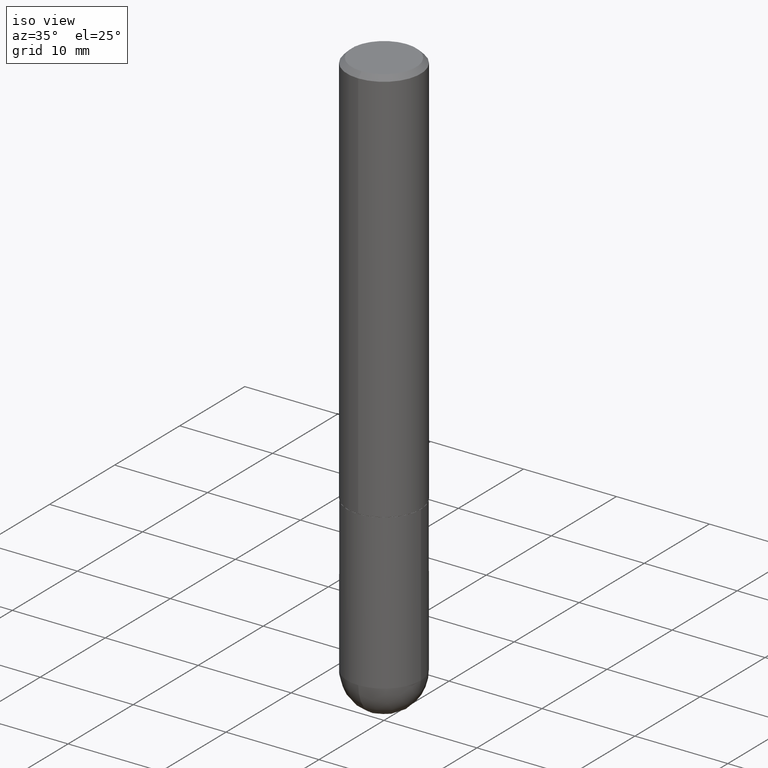
[diagram: clean part render]
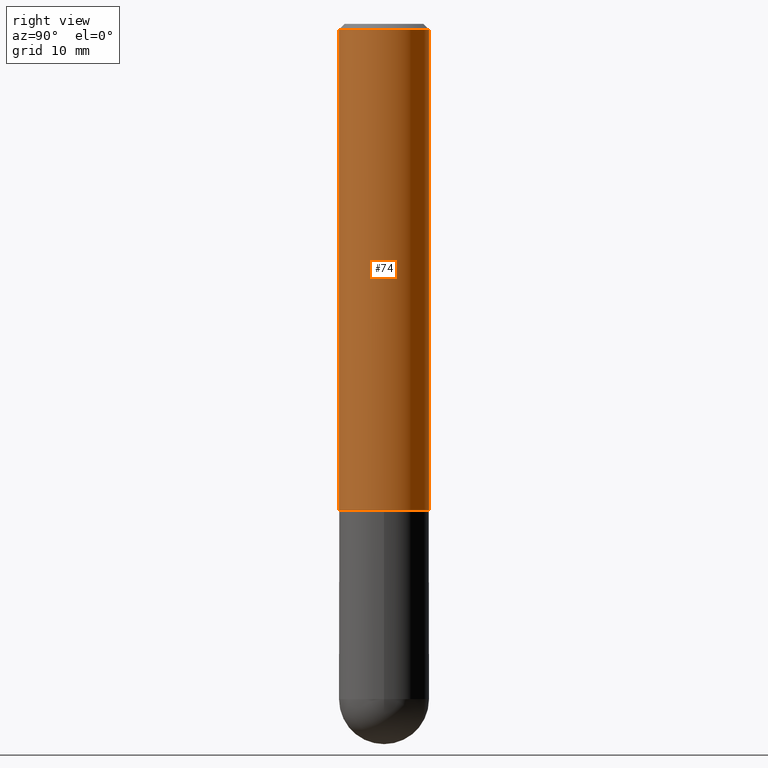
[diagram: tour spotlight — one face highlighted and labeled with its STEP entity id]
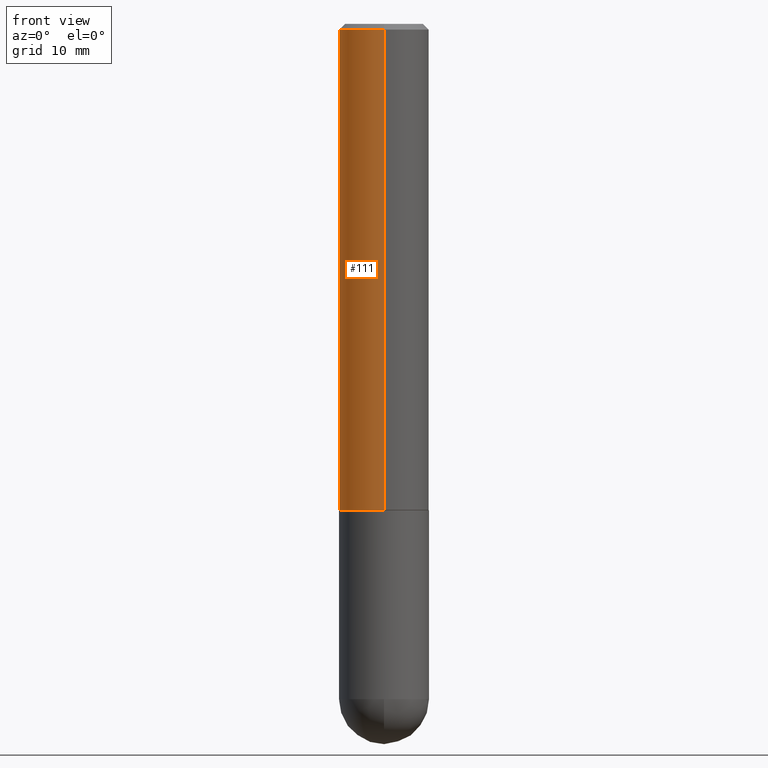
[diagram: tour spotlight — one face highlighted and labeled with its STEP entity id]
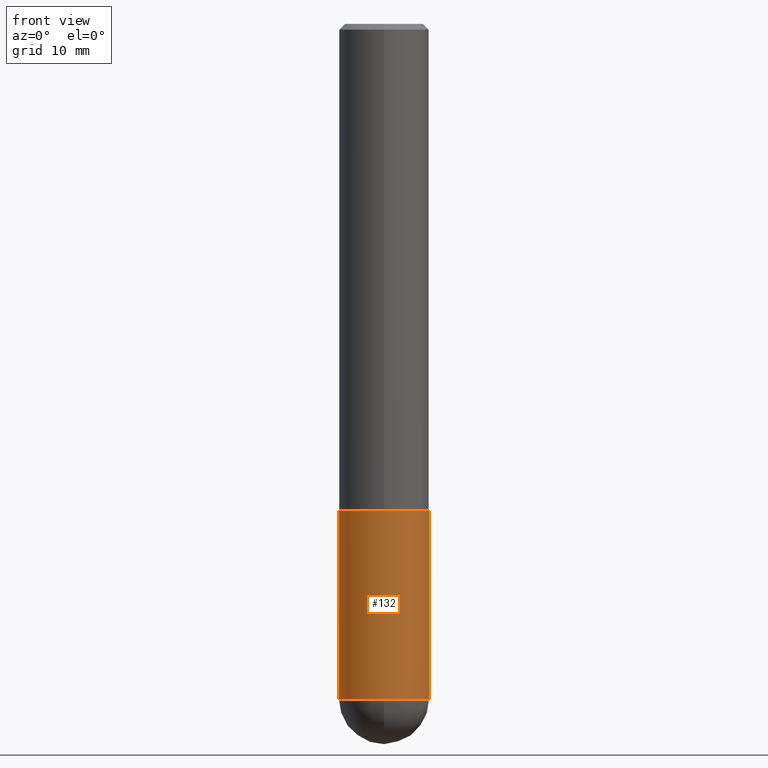
[diagram: tour spotlight — one face highlighted and labeled with its STEP entity id]
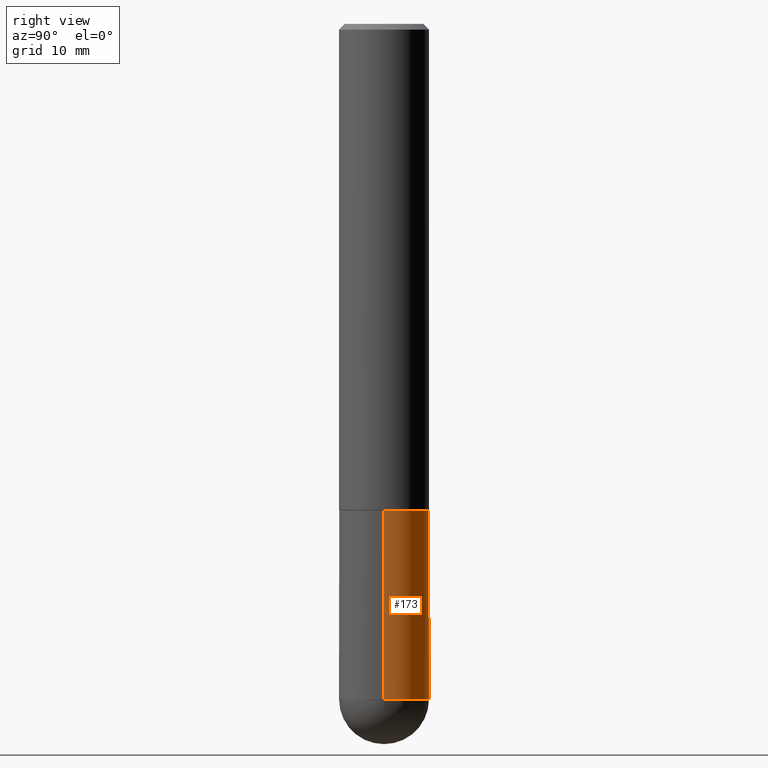
[diagram: tour spotlight — one face highlighted and labeled with its STEP entity id]
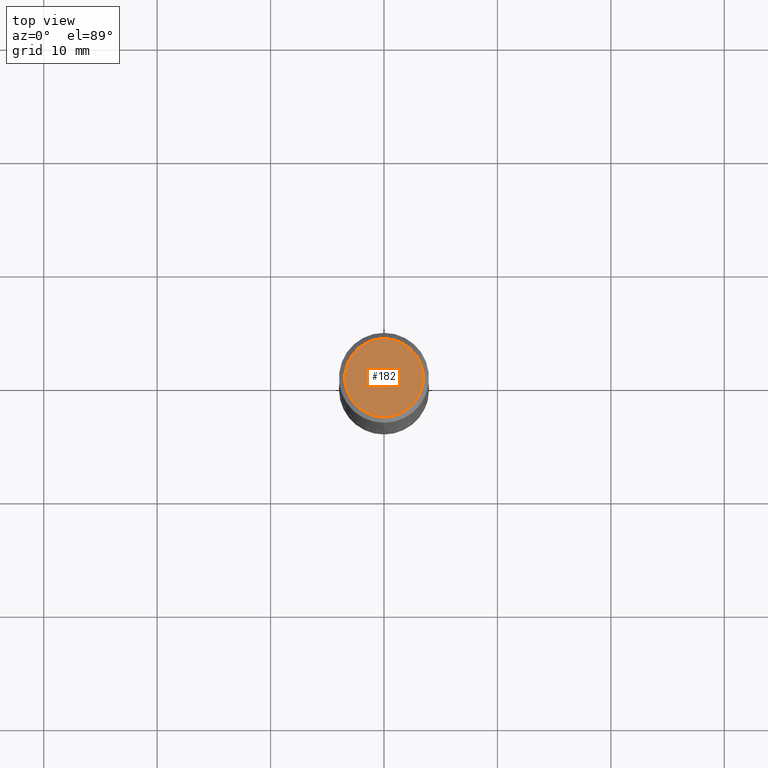
[diagram: tour spotlight — one face highlighted and labeled with its STEP entity id]
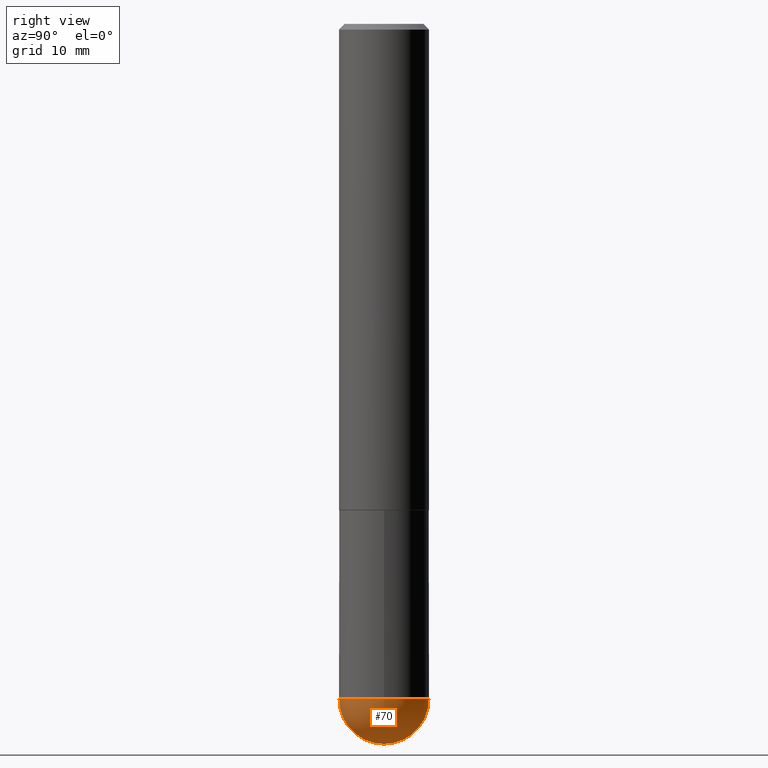
[diagram: tour spotlight — one face highlighted and labeled with its STEP entity id]
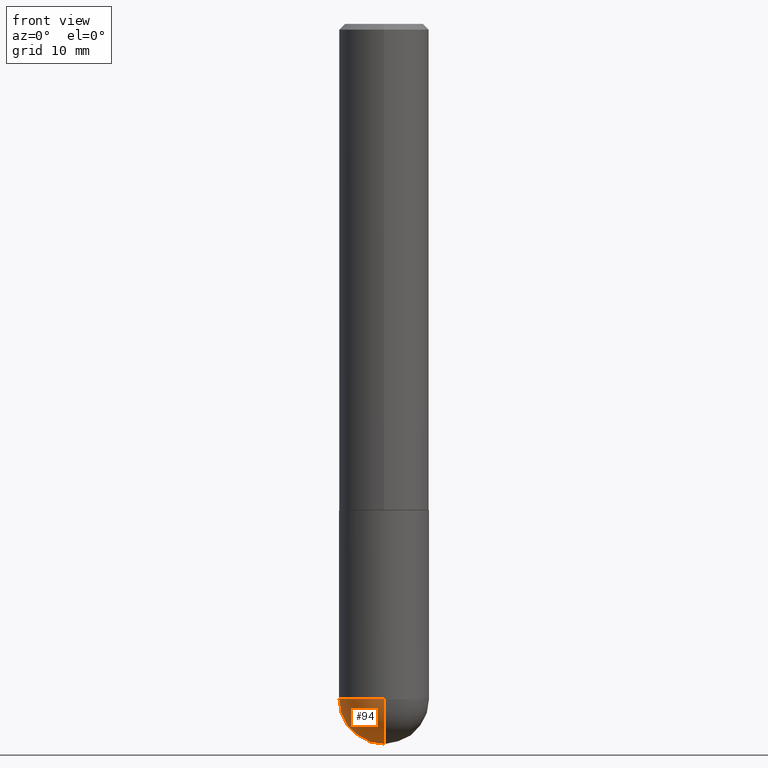
[diagram: tour spotlight — one face highlighted and labeled with its STEP entity id]
A machine part: a face-by-face anatomy tour. The part has 13 B-rep faces; the first image is the clean iso view, then the 7 largest visible faces are spotlighted one at a time (largest first), each with its STEP entity span.

Face 1 — right view, entity #74. In plain terms, the highlighted cylindrical surface (partial cylindrical patch) has radius 3.9688 mm, axis along (-0, 0, 1).
Definition (entity closure, byte-faithful):
#30 = DIRECTION ( 'NONE',  ( -2.446082020685560042E-29, 3.490603180776537498E-15, 1.000000000000000000 ) ) ;
#33 = CIRCLE ( 'NONE', #108, 0.1562500000000002220 ) ;
#41 = EDGE_LOOP ( 'NONE', ( #332, #65, #196, #207 ) ) ;
#43 = DIRECTION ( 'NONE',  ( -6.982962677686265922E-15, -1.000000000000000000, 3.490603180776537104E-15 ) ) ;
#61 = VERTEX_POINT ( 'NONE', #304 ) ;
#65 = ORIENTED_EDGE ( 'NONE', *, *, #258, .T. ) ;
#69 = CARTESIAN_POINT ( 'NONE',  ( 1.110223024625157132E-15, 0.1562500000000001110, -5.454067469963343169E-16 ) ) ;
#74 = ADVANCED_FACE ( 'NONE', ( #213 ), #340, .T. ) ;
#75 = VECTOR ( 'NONE', #115, 39.37007874015748143 ) ;
#76 = DIRECTION ( 'NONE',  ( -2.446082020685560042E-29, 3.490603180776537498E-15, 1.000000000000000000 ) ) ;
#81 = VECTOR ( 'NONE', #30, 39.37007874015748143 ) ;
#108 = AXIS2_PLACEMENT_3D ( 'NONE', #128, #131, #380 ) ;
#115 = DIRECTION ( 'NONE',  ( -2.446082020685560042E-29, 3.490603180776537498E-15, 1.000000000000000000 ) ) ;
#116 = VERTEX_POINT ( 'NONE', #211 ) ;
#128 = CARTESIAN_POINT ( 'NONE',  ( 4.126540368896540526E-29, -5.888647565970019255E-15, -1.687000000000000055 ) ) ;
#131 = DIRECTION ( 'NONE',  ( -2.446082020685560042E-29, 3.490603180776537498E-15, 1.000000000000000000 ) ) ;
#152 = EDGE_CURVE ( 'NONE', #410, #116, #402, .T. ) ;
#156 = AXIS2_PLACEMENT_3D ( 'NONE', #371, #76, #43 ) ;
#192 = CARTESIAN_POINT ( 'NONE',  ( -1.091087918388439336E-15, -0.1562500000000060785, -1.686999999999999611 ) ) ;
#196 = ORIENTED_EDGE ( 'NONE', *, *, #355, .F. ) ;
#203 = VERTEX_POINT ( 'NONE', #206 ) ;
#206 = CARTESIAN_POINT ( 'NONE',  ( 1.091087918388479568E-15, 0.1562499999999999445, -0.02000000000000057981 ) ) ;
#207 = ORIENTED_EDGE ( 'NONE', *, *, #152, .F. ) ;
#211 = CARTESIAN_POINT ( 'NONE',  ( -1.071952812151801215E-15, -0.1562500000000000833, -0.01999999999999948694 ) ) ;
#213 = FACE_OUTER_BOUND ( 'NONE', #41, .T. ) ;
#224 = DIRECTION ( 'NONE',  ( -2.446082020685560042E-29, 3.490603180776537498E-15, 1.000000000000000000 ) ) ;
#235 = CIRCLE ( 'NONE', #254, 0.1562500000000000000 ) ;
#252 = DIRECTION ( 'NONE',  ( -6.982962677686265133E-15, -1.000000000000000000, 3.496765431890256920E-15 ) ) ;
#254 = AXIS2_PLACEMENT_3D ( 'NONE', #376, #224, #252 ) ;
#258 = EDGE_CURVE ( 'NONE', #61, #203, #352, .T. ) ;
#304 = CARTESIAN_POINT ( 'NONE',  ( 1.110223024625178431E-15, 0.1562499999999943379, -1.687000000000000499 ) ) ;
#332 = ORIENTED_EDGE ( 'NONE', *, *, #350, .T. ) ;
#340 = CYLINDRICAL_SURFACE ( 'NONE', #156, 0.1562500000000001110 ) ;
#350 = EDGE_CURVE ( 'NONE', #410, #61, #33, .T. ) ;
#352 = LINE ( 'NONE', #69, #81 ) ;
#355 = EDGE_CURVE ( 'NONE', #116, #203, #235, .T. ) ;
#371 = CARTESIAN_POINT ( 'NONE',  ( 0.000000000000000000, 0.000000000000000000, 0.000000000000000000 ) ) ;
#376 = CARTESIAN_POINT ( 'NONE',  ( 4.892164041371128702E-31, -6.981206361553086139E-17, -0.02000000000000003511 ) ) ;
#380 = DIRECTION ( 'NONE',  ( -6.982962677686265922E-15, -1.000000000000000000, 3.496765431890251792E-15 ) ) ;
#397 = CARTESIAN_POINT ( 'NONE',  ( -1.091087918388479765E-15, -0.1562500000000001110, 5.454067469963343169E-16 ) ) ;
#402 = LINE ( 'NONE', #397, #75 ) ;
#410 = VERTEX_POINT ( 'NONE', #192 ) ;

Face 2 — front view, entity #111. In plain terms, the highlighted cylindrical surface (partial cylindrical patch) has radius 3.9688 mm, axis along (-0, 0, 1).
Definition (entity closure, byte-faithful):
#1 = EDGE_CURVE ( 'NONE', #203, #116, #267, .T. ) ;
#17 = ORIENTED_EDGE ( 'NONE', *, *, #152, .T. ) ;
#20 = DIRECTION ( 'NONE',  ( -6.982962677686265922E-15, -1.000000000000000000, 3.490603180776537104E-15 ) ) ;
#30 = DIRECTION ( 'NONE',  ( -2.446082020685560042E-29, 3.490603180776537498E-15, 1.000000000000000000 ) ) ;
#55 = CARTESIAN_POINT ( 'NONE',  ( 4.126540368896540526E-29, -5.888647565970019255E-15, -1.687000000000000055 ) ) ;
#56 = EDGE_LOOP ( 'NONE', ( #346, #82, #17, #238 ) ) ;
#60 = DIRECTION ( 'NONE',  ( -2.446082020685560042E-29, 3.490603180776537498E-15, 1.000000000000000000 ) ) ;
#61 = VERTEX_POINT ( 'NONE', #304 ) ;
#64 = DIRECTION ( 'NONE',  ( -2.446082020685560042E-29, 3.490603180776537498E-15, 1.000000000000000000 ) ) ;
#69 = CARTESIAN_POINT ( 'NONE',  ( 1.110223024625157132E-15, 0.1562500000000001110, -5.454067469963343169E-16 ) ) ;
#75 = VECTOR ( 'NONE', #115, 39.37007874015748143 ) ;
#81 = VECTOR ( 'NONE', #30, 39.37007874015748143 ) ;
#82 = ORIENTED_EDGE ( 'NONE', *, *, #406, .T. ) ;
#105 = CIRCLE ( 'NONE', #282, 0.1562500000000002220 ) ;
#111 = ADVANCED_FACE ( 'NONE', ( #148 ), #239, .T. ) ;
#113 = AXIS2_PLACEMENT_3D ( 'NONE', #394, #144, #202 ) ;
#115 = DIRECTION ( 'NONE',  ( -2.446082020685560042E-29, 3.490603180776537498E-15, 1.000000000000000000 ) ) ;
#116 = VERTEX_POINT ( 'NONE', #211 ) ;
#144 = DIRECTION ( 'NONE',  ( -2.446082020685560042E-29, 3.490603180776537498E-15, 1.000000000000000000 ) ) ;
#148 = FACE_OUTER_BOUND ( 'NONE', #56, .T. ) ;
#152 = EDGE_CURVE ( 'NONE', #410, #116, #402, .T. ) ;
#183 = DIRECTION ( 'NONE',  ( -6.982962677686265922E-15, -1.000000000000000000, 3.496765431890251792E-15 ) ) ;
#192 = CARTESIAN_POINT ( 'NONE',  ( -1.091087918388439336E-15, -0.1562500000000060785, -1.686999999999999611 ) ) ;
#202 = DIRECTION ( 'NONE',  ( -6.982962677686265133E-15, -1.000000000000000000, 3.496765431890256920E-15 ) ) ;
#203 = VERTEX_POINT ( 'NONE', #206 ) ;
#206 = CARTESIAN_POINT ( 'NONE',  ( 1.091087918388479568E-15, 0.1562499999999999445, -0.02000000000000057981 ) ) ;
#211 = CARTESIAN_POINT ( 'NONE',  ( -1.071952812151801215E-15, -0.1562500000000000833, -0.01999999999999948694 ) ) ;
#238 = ORIENTED_EDGE ( 'NONE', *, *, #1, .F. ) ;
#239 = CYLINDRICAL_SURFACE ( 'NONE', #398, 0.1562500000000001110 ) ;
#258 = EDGE_CURVE ( 'NONE', #61, #203, #352, .T. ) ;
#267 = CIRCLE ( 'NONE', #113, 0.1562500000000000000 ) ;
#273 = CARTESIAN_POINT ( 'NONE',  ( 0.000000000000000000, 0.000000000000000000, 0.000000000000000000 ) ) ;
#282 = AXIS2_PLACEMENT_3D ( 'NONE', #55, #64, #183 ) ;
#304 = CARTESIAN_POINT ( 'NONE',  ( 1.110223024625178431E-15, 0.1562499999999943379, -1.687000000000000499 ) ) ;
#346 = ORIENTED_EDGE ( 'NONE', *, *, #258, .F. ) ;
#352 = LINE ( 'NONE', #69, #81 ) ;
#394 = CARTESIAN_POINT ( 'NONE',  ( 4.892164041371128702E-31, -6.981206361553086139E-17, -0.02000000000000003511 ) ) ;
#397 = CARTESIAN_POINT ( 'NONE',  ( -1.091087918388479765E-15, -0.1562500000000001110, 5.454067469963343169E-16 ) ) ;
#398 = AXIS2_PLACEMENT_3D ( 'NONE', #273, #60, #20 ) ;
#402 = LINE ( 'NONE', #397, #75 ) ;
#406 = EDGE_CURVE ( 'NONE', #61, #410, #105, .T. ) ;
#410 = VERTEX_POINT ( 'NONE', #192 ) ;

Face 3 — front view, entity #132. In plain terms, the highlighted cylindrical surface (partial cylindrical patch) has radius 3.9688 mm, axis along (-0, 0, 1).
Definition (entity closure, byte-faithful):
#21 = ORIENTED_EDGE ( 'NONE', *, *, #79, .F. ) ;
#24 = LINE ( 'NONE', #208, #281 ) ;
#27 = VERTEX_POINT ( 'NONE', #78 ) ;
#32 = VERTEX_POINT ( 'NONE', #114 ) ;
#38 = CARTESIAN_POINT ( 'NONE',  ( -0.1562500000000000000, 1.110223024625156540E-15, -7.685836078523291160E-30 ) ) ;
#42 = EDGE_CURVE ( 'NONE', #210, #27, #353, .T. ) ;
#44 = DIRECTION ( 'NONE',  ( -2.445468806185136597E-29, 3.491481338843145583E-15, 1.000000000000000000 ) ) ;
#46 = AXIS2_PLACEMENT_3D ( 'NONE', #102, #193, #287 ) ;
#51 = CARTESIAN_POINT ( 'NONE',  ( -0.1562500000000000000, -5.928166919315269532E-15, -1.688000000000000167 ) ) ;
#53 = CIRCLE ( 'NONE', #46, 0.1562500000000000000 ) ;
#59 = EDGE_LOOP ( 'NONE', ( #178, #218, #313, #323, #21 ) ) ;
#78 = CARTESIAN_POINT ( 'NONE',  ( 0.1562500000000000000, -8.129477862328905246E-15, -2.343750000000000000 ) ) ;
#79 = EDGE_CURVE ( 'NONE', #160, #403, #137, .T. ) ;
#90 = AXIS2_PLACEMENT_3D ( 'NONE', #373, #117, #299 ) ;
#100 = CARTESIAN_POINT ( 'NONE',  ( 4.127951344840510809E-29, -5.893620499967230340E-15, -1.688000000000000167 ) ) ;
#102 = CARTESIAN_POINT ( 'NONE',  ( 5.731567514496413899E-29, -8.183159387913622595E-15, -2.343750000000000000 ) ) ;
#114 = CARTESIAN_POINT ( 'NONE',  ( -0.1562500000000000000, -5.928166919315270321E-15, -2.343750000000000000 ) ) ;
#117 = DIRECTION ( 'NONE',  ( -2.445468806185136597E-29, 3.491481338843145583E-15, 1.000000000000000000 ) ) ;
#118 = VECTOR ( 'NONE', #378, 39.37007874015748143 ) ;
#120 = FACE_OUTER_BOUND ( 'NONE', #59, .T. ) ;
#132 = ADVANCED_FACE ( 'NONE', ( #120 ), #268, .T. ) ;
#137 = CIRCLE ( 'NONE', #321, 0.1562500000000000000 ) ;
#142 = CARTESIAN_POINT ( 'NONE',  ( 5.731567514496413899E-29, -8.183159387913622595E-15, -2.343750000000000000 ) ) ;
#160 = VERTEX_POINT ( 'NONE', #51 ) ;
#178 = ORIENTED_EDGE ( 'NONE', *, *, #385, .F. ) ;
#193 = DIRECTION ( 'NONE',  ( -2.445468806185136597E-29, 3.491481338843145583E-15, 1.000000000000000000 ) ) ;
#199 = EDGE_CURVE ( 'NONE', #27, #403, #24, .T. ) ;
#208 = CARTESIAN_POINT ( 'NONE',  ( 0.1562500000000000000, -1.091087918388479174E-15, 7.619026212181150377E-30 ) ) ;
#210 = VERTEX_POINT ( 'NONE', #408 ) ;
#218 = ORIENTED_EDGE ( 'NONE', *, *, #364, .T. ) ;
#263 = DIRECTION ( 'NONE',  ( -2.445468806185136597E-29, 3.491481338843145583E-15, 1.000000000000000000 ) ) ;
#264 = CARTESIAN_POINT ( 'NONE',  ( 0.1562500000000000000, -6.984708418355709513E-15, -1.688000000000000167 ) ) ;
#268 = CYLINDRICAL_SURFACE ( 'NONE', #90, 0.1562500000000000000 ) ;
#281 = VECTOR ( 'NONE', #365, 39.37007874015748143 ) ;
#287 = DIRECTION ( 'NONE',  ( 1.000000000000000000, -6.982962677686262766E-15, 0.000000000000000000 ) ) ;
#295 = DIRECTION ( 'NONE',  ( 1.000000000000000000, -6.982962677686269077E-15, 0.000000000000000000 ) ) ;
#299 = DIRECTION ( 'NONE',  ( 1.000000000000000000, -6.982962677686266711E-15, 4.876176775795936353E-29 ) ) ;
#313 = ORIENTED_EDGE ( 'NONE', *, *, #42, .T. ) ;
#314 = LINE ( 'NONE', #38, #118 ) ;
#321 = AXIS2_PLACEMENT_3D ( 'NONE', #100, #44, #295 ) ;
#323 = ORIENTED_EDGE ( 'NONE', *, *, #199, .T. ) ;
#353 = CIRCLE ( 'NONE', #391, 0.1562500000000000000 ) ;
#364 = EDGE_CURVE ( 'NONE', #32, #210, #53, .T. ) ;
#365 = DIRECTION ( 'NONE',  ( -2.445468806185136877E-29, 3.491481338843145188E-15, 1.000000000000000000 ) ) ;
#373 = CARTESIAN_POINT ( 'NONE',  ( 0.000000000000000000, 0.000000000000000000, 0.000000000000000000 ) ) ;
#378 = DIRECTION ( 'NONE',  ( -2.445468806185136877E-29, 3.491481338843145188E-15, 1.000000000000000000 ) ) ;
#385 = EDGE_CURVE ( 'NONE', #32, #160, #314, .T. ) ;
#391 = AXIS2_PLACEMENT_3D ( 'NONE', #142, #263, #396 ) ;
#396 = DIRECTION ( 'NONE',  ( 1.000000000000000000, -6.982962677686262766E-15, 0.000000000000000000 ) ) ;
#403 = VERTEX_POINT ( 'NONE', #264 ) ;
#408 = CARTESIAN_POINT ( 'NONE',  ( -1.110223024625101517E-15, -0.1562500000000085487, -2.343749999999999556 ) ) ;

Face 4 — right view, entity #173. In plain terms, the highlighted cylindrical surface (partial cylindrical patch) has radius 3.9688 mm, axis along (-0, 0, 1).
Definition (entity closure, byte-faithful):
#2 = DIRECTION ( 'NONE',  ( -2.445468806185136597E-29, 3.491481338843145583E-15, 1.000000000000000000 ) ) ;
#6 = DIRECTION ( 'NONE',  ( -2.445468806185136597E-29, 3.491481338843145583E-15, 1.000000000000000000 ) ) ;
#8 = CIRCLE ( 'NONE', #25, 0.1562500000000000000 ) ;
#9 = CIRCLE ( 'NONE', #289, 0.1562500000000000000 ) ;
#16 = AXIS2_PLACEMENT_3D ( 'NONE', #124, #85, #236 ) ;
#24 = LINE ( 'NONE', #208, #281 ) ;
#25 = AXIS2_PLACEMENT_3D ( 'NONE', #101, #6, #225 ) ;
#27 = VERTEX_POINT ( 'NONE', #78 ) ;
#32 = VERTEX_POINT ( 'NONE', #114 ) ;
#38 = CARTESIAN_POINT ( 'NONE',  ( -0.1562500000000000000, 1.110223024625156540E-15, -7.685836078523291160E-30 ) ) ;
#51 = CARTESIAN_POINT ( 'NONE',  ( -0.1562500000000000000, -5.928166919315269532E-15, -1.688000000000000167 ) ) ;
#78 = CARTESIAN_POINT ( 'NONE',  ( 0.1562500000000000000, -8.129477862328905246E-15, -2.343750000000000000 ) ) ;
#83 = CYLINDRICAL_SURFACE ( 'NONE', #230, 0.1562500000000000000 ) ;
#85 = DIRECTION ( 'NONE',  ( -2.445468806185136597E-29, 3.491481338843145583E-15, 1.000000000000000000 ) ) ;
#87 = EDGE_CURVE ( 'NONE', #403, #160, #9, .T. ) ;
#91 = ORIENTED_EDGE ( 'NONE', *, *, #385, .T. ) ;
#95 = ORIENTED_EDGE ( 'NONE', *, *, #199, .F. ) ;
#101 = CARTESIAN_POINT ( 'NONE',  ( 5.731567514496413899E-29, -8.183159387913622595E-15, -2.343750000000000000 ) ) ;
#114 = CARTESIAN_POINT ( 'NONE',  ( -0.1562500000000000000, -5.928166919315270321E-15, -2.343750000000000000 ) ) ;
#118 = VECTOR ( 'NONE', #378, 39.37007874015748143 ) ;
#124 = CARTESIAN_POINT ( 'NONE',  ( 5.731567514496413899E-29, -8.183159387913622595E-15, -2.343750000000000000 ) ) ;
#160 = VERTEX_POINT ( 'NONE', #51 ) ;
#173 = ADVANCED_FACE ( 'NONE', ( #181 ), #83, .T. ) ;
#180 = ORIENTED_EDGE ( 'NONE', *, *, #87, .F. ) ;
#181 = FACE_OUTER_BOUND ( 'NONE', #240, .T. ) ;
#190 = CIRCLE ( 'NONE', #16, 0.1562500000000000000 ) ;
#199 = EDGE_CURVE ( 'NONE', #27, #403, #24, .T. ) ;
#204 = CARTESIAN_POINT ( 'NONE',  ( 0.000000000000000000, 0.000000000000000000, 0.000000000000000000 ) ) ;
#208 = CARTESIAN_POINT ( 'NONE',  ( 0.1562500000000000000, -1.091087918388479174E-15, 7.619026212181150377E-30 ) ) ;
#215 = DIRECTION ( 'NONE',  ( 1.000000000000000000, -6.982962677686266711E-15, 4.876176775795936353E-29 ) ) ;
#216 = EDGE_CURVE ( 'NONE', #381, #32, #190, .T. ) ;
#225 = DIRECTION ( 'NONE',  ( 1.000000000000000000, -6.982962677686262766E-15, 0.000000000000000000 ) ) ;
#230 = AXIS2_PLACEMENT_3D ( 'NONE', #204, #370, #215 ) ;
#236 = DIRECTION ( 'NONE',  ( 1.000000000000000000, -6.982962677686262766E-15, 0.000000000000000000 ) ) ;
#240 = EDGE_LOOP ( 'NONE', ( #411, #91, #180, #95, #341 ) ) ;
#262 = CARTESIAN_POINT ( 'NONE',  ( 4.127951344840510809E-29, -5.893620499967230340E-15, -1.688000000000000167 ) ) ;
#264 = CARTESIAN_POINT ( 'NONE',  ( 0.1562500000000000000, -6.984708418355709513E-15, -1.688000000000000167 ) ) ;
#281 = VECTOR ( 'NONE', #365, 39.37007874015748143 ) ;
#285 = EDGE_CURVE ( 'NONE', #27, #381, #8, .T. ) ;
#289 = AXIS2_PLACEMENT_3D ( 'NONE', #262, #2, #387 ) ;
#314 = LINE ( 'NONE', #38, #118 ) ;
#318 = CARTESIAN_POINT ( 'NONE',  ( 1.091087918388535577E-15, 0.1562499999999916733, -2.343750000000000444 ) ) ;
#341 = ORIENTED_EDGE ( 'NONE', *, *, #285, .T. ) ;
#365 = DIRECTION ( 'NONE',  ( -2.445468806185136877E-29, 3.491481338843145188E-15, 1.000000000000000000 ) ) ;
#370 = DIRECTION ( 'NONE',  ( -2.445468806185136597E-29, 3.491481338843145583E-15, 1.000000000000000000 ) ) ;
#378 = DIRECTION ( 'NONE',  ( -2.445468806185136877E-29, 3.491481338843145188E-15, 1.000000000000000000 ) ) ;
#381 = VERTEX_POINT ( 'NONE', #318 ) ;
#385 = EDGE_CURVE ( 'NONE', #32, #160, #314, .T. ) ;
#387 = DIRECTION ( 'NONE',  ( 1.000000000000000000, -6.982962677686269077E-15, 0.000000000000000000 ) ) ;
#403 = VERTEX_POINT ( 'NONE', #264 ) ;
#411 = ORIENTED_EDGE ( 'NONE', *, *, #216, .T. ) ;

Face 5 — top view, entity #182. In plain terms, the highlighted planar face has unit normal (0, -0, -1).
Definition (entity closure, byte-faithful):
#3 = CIRCLE ( 'NONE', #174, 0.1362500000000000100 ) ;
#4 = CARTESIAN_POINT ( 'NONE',  ( 1.021258291611616664E-15, 0.1362500000000000100, -4.757143324173786552E-16 ) ) ;
#39 = EDGE_CURVE ( 'NONE', #362, #221, #3, .T. ) ;
#47 = EDGE_CURVE ( 'NONE', #221, #362, #361, .T. ) ;
#49 = CARTESIAN_POINT ( 'NONE',  ( 9.514286648347539576E-16, 0.1362500000000000100, -4.756545078990909690E-16 ) ) ;
#57 = DIRECTION ( 'NONE',  ( 2.446082020685559481E-29, -3.490603180776537498E-15, -1.000000000000000000 ) ) ;
#110 = CARTESIAN_POINT ( 'NONE',  ( 2.926713571593621492E-48, -4.176473076468356444E-34, -1.196490365753702472E-19 ) ) ;
#140 = DIRECTION ( 'NONE',  ( -2.446082020685560042E-29, 3.490603180776537498E-15, 1.000000000000000000 ) ) ;
#155 = PLANE ( 'NONE',  #316 ) ;
#158 = CARTESIAN_POINT ( 'NONE',  ( -1.003347832174086081E-15, -0.1362500000000000100, 4.754750343442279107E-16 ) ) ;
#171 = CARTESIAN_POINT ( 'NONE',  ( 2.926713571593621492E-48, -4.176473076468356444E-34, -1.196490365753702472E-19 ) ) ;
#174 = AXIS2_PLACEMENT_3D ( 'NONE', #171, #140, #324 ) ;
#182 = ADVANCED_FACE ( 'NONE', ( #307 ), #155, .F. ) ;
#221 = VERTEX_POINT ( 'NONE', #4 ) ;
#275 = AXIS2_PLACEMENT_3D ( 'NONE', #110, #329, #409 ) ;
#278 = ORIENTED_EDGE ( 'NONE', *, *, #39, .T. ) ;
#307 = FACE_OUTER_BOUND ( 'NONE', #312, .T. ) ;
#312 = EDGE_LOOP ( 'NONE', ( #337, #278 ) ) ;
#316 = AXIS2_PLACEMENT_3D ( 'NONE', #49, #57, #333 ) ;
#324 = DIRECTION ( 'NONE',  ( -6.982962677686266711E-15, -1.000000000000000000, 3.490603180776537498E-15 ) ) ;
#329 = DIRECTION ( 'NONE',  ( -2.446082020685560042E-29, 3.490603180776537498E-15, 1.000000000000000000 ) ) ;
#333 = DIRECTION ( 'NONE',  ( 6.982962677686265922E-15, 1.000000000000000000, -3.490603180776537498E-15 ) ) ;
#337 = ORIENTED_EDGE ( 'NONE', *, *, #47, .T. ) ;
#361 = CIRCLE ( 'NONE', #275, 0.1362500000000000100 ) ;
#362 = VERTEX_POINT ( 'NONE', #158 ) ;
#409 = DIRECTION ( 'NONE',  ( -6.982962677686266711E-15, -1.000000000000000000, 3.490603180776537498E-15 ) ) ;

Face 6 — right view, entity #70. In plain terms, the highlighted spherical surface has radius 3.9688 mm.
Definition (entity closure, byte-faithful):
#6 = DIRECTION ( 'NONE',  ( -2.445468806185136597E-29, 3.491481338843145583E-15, 1.000000000000000000 ) ) ;
#8 = CIRCLE ( 'NONE', #25, 0.1562500000000000000 ) ;
#25 = AXIS2_PLACEMENT_3D ( 'NONE', #101, #6, #225 ) ;
#27 = VERTEX_POINT ( 'NONE', #78 ) ;
#34 = AXIS2_PLACEMENT_3D ( 'NONE', #179, #150, #242 ) ;
#35 = CIRCLE ( 'NONE', #405, 0.1562500000000002498 ) ;
#42 = EDGE_CURVE ( 'NONE', #210, #27, #353, .T. ) ;
#63 = ORIENTED_EDGE ( 'NONE', *, *, #360, .T. ) ;
#66 = CARTESIAN_POINT ( 'NONE',  ( 5.400447736582527652E-29, -8.657341756053672891E-15, -2.343750000000000000 ) ) ;
#67 = DIRECTION ( 'NONE',  ( 6.982962677686265922E-15, 1.000000000000000000, 0.000000000000000000 ) ) ;
#70 = ADVANCED_FACE ( 'NONE', ( #374 ), #122, .T. ) ;
#78 = CARTESIAN_POINT ( 'NONE',  ( 0.1562500000000000000, -8.129477862328905246E-15, -2.343750000000000000 ) ) ;
#101 = CARTESIAN_POINT ( 'NONE',  ( 5.731567514496413899E-29, -8.183159387913622595E-15, -2.343750000000000000 ) ) ;
#122 = SPHERICAL_SURFACE ( 'NONE', #34, 0.1562500000000002498 ) ;
#127 = ORIENTED_EDGE ( 'NONE', *, *, #285, .F. ) ;
#133 = DIRECTION ( 'NONE',  ( -7.105427357601000281E-15, -1.000000000000000000, 0.000000000000000000 ) ) ;
#142 = CARTESIAN_POINT ( 'NONE',  ( 5.731567514496413899E-29, -8.183159387913622595E-15, -2.343750000000000000 ) ) ;
#150 = DIRECTION ( 'NONE',  ( -1.000000000000000000, 6.982962677686265922E-15, -4.883557194083112340E-29 ) ) ;
#179 = CARTESIAN_POINT ( 'NONE',  ( 5.400447736582527652E-29, -8.657341756053672891E-15, -2.343750000000000000 ) ) ;
#184 = ORIENTED_EDGE ( 'NONE', *, *, #42, .F. ) ;
#186 = EDGE_LOOP ( 'NONE', ( #310, #63, #127, #184 ) ) ;
#188 = DIRECTION ( 'NONE',  ( -1.000000000000000000, 7.105427357601001070E-15, -4.926315508542082329E-29 ) ) ;
#210 = VERTEX_POINT ( 'NONE', #408 ) ;
#219 = DIRECTION ( 'NONE',  ( 1.000000000000000000, -6.982962677686265922E-15, 4.883557194083112340E-29 ) ) ;
#225 = DIRECTION ( 'NONE',  ( 1.000000000000000000, -6.982962677686262766E-15, 0.000000000000000000 ) ) ;
#232 = CIRCLE ( 'NONE', #308, 0.1562500000000002498 ) ;
#242 = DIRECTION ( 'NONE',  ( 6.982962677686265922E-15, 1.000000000000000000, -3.496765431890251398E-15 ) ) ;
#263 = DIRECTION ( 'NONE',  ( -2.445468806185136597E-29, 3.491481338843145583E-15, 1.000000000000000000 ) ) ;
#272 = VERTEX_POINT ( 'NONE', #342 ) ;
#277 = EDGE_CURVE ( 'NONE', #272, #210, #35, .T. ) ;
#285 = EDGE_CURVE ( 'NONE', #27, #381, #8, .T. ) ;
#308 = AXIS2_PLACEMENT_3D ( 'NONE', #66, #219, #67 ) ;
#310 = ORIENTED_EDGE ( 'NONE', *, *, #277, .F. ) ;
#311 = CARTESIAN_POINT ( 'NONE',  ( 5.400447736582527652E-29, -8.657341756053672891E-15, -2.343750000000000000 ) ) ;
#318 = CARTESIAN_POINT ( 'NONE',  ( 1.091087918388535577E-15, 0.1562499999999916733, -2.343750000000000444 ) ) ;
#342 = CARTESIAN_POINT ( 'NONE',  ( 5.789233224183170584E-29, -9.193318162129576161E-15, -2.500000000000000000 ) ) ;
#353 = CIRCLE ( 'NONE', #391, 0.1562500000000000000 ) ;
#360 = EDGE_CURVE ( 'NONE', #272, #381, #232, .T. ) ;
#374 = FACE_OUTER_BOUND ( 'NONE', #186, .T. ) ;
#381 = VERTEX_POINT ( 'NONE', #318 ) ;
#391 = AXIS2_PLACEMENT_3D ( 'NONE', #142, #263, #396 ) ;
#396 = DIRECTION ( 'NONE',  ( 1.000000000000000000, -6.982962677686262766E-15, 0.000000000000000000 ) ) ;
#405 = AXIS2_PLACEMENT_3D ( 'NONE', #311, #188, #133 ) ;
#408 = CARTESIAN_POINT ( 'NONE',  ( -1.110223024625101517E-15, -0.1562500000000085487, -2.343749999999999556 ) ) ;

Face 7 — front view, entity #94. In plain terms, the highlighted spherical surface has radius 3.9688 mm.
Definition (entity closure, byte-faithful):
#16 = AXIS2_PLACEMENT_3D ( 'NONE', #124, #85, #236 ) ;
#23 = ORIENTED_EDGE ( 'NONE', *, *, #364, .F. ) ;
#32 = VERTEX_POINT ( 'NONE', #114 ) ;
#35 = CIRCLE ( 'NONE', #405, 0.1562500000000002498 ) ;
#46 = AXIS2_PLACEMENT_3D ( 'NONE', #102, #193, #287 ) ;
#53 = CIRCLE ( 'NONE', #46, 0.1562500000000000000 ) ;
#66 = CARTESIAN_POINT ( 'NONE',  ( 5.400447736582527652E-29, -8.657341756053672891E-15, -2.343750000000000000 ) ) ;
#67 = DIRECTION ( 'NONE',  ( 6.982962677686265922E-15, 1.000000000000000000, 0.000000000000000000 ) ) ;
#85 = DIRECTION ( 'NONE',  ( -2.445468806185136597E-29, 3.491481338843145583E-15, 1.000000000000000000 ) ) ;
#94 = ADVANCED_FACE ( 'NONE', ( #129 ), #241, .T. ) ;
#98 = ORIENTED_EDGE ( 'NONE', *, *, #360, .F. ) ;
#102 = CARTESIAN_POINT ( 'NONE',  ( 5.731567514496413899E-29, -8.183159387913622595E-15, -2.343750000000000000 ) ) ;
#114 = CARTESIAN_POINT ( 'NONE',  ( -0.1562500000000000000, -5.928166919315270321E-15, -2.343750000000000000 ) ) ;
#124 = CARTESIAN_POINT ( 'NONE',  ( 5.731567514496413899E-29, -8.183159387913622595E-15, -2.343750000000000000 ) ) ;
#129 = FACE_OUTER_BOUND ( 'NONE', #372, .T. ) ;
#133 = DIRECTION ( 'NONE',  ( -7.105427357601000281E-15, -1.000000000000000000, 0.000000000000000000 ) ) ;
#149 = ORIENTED_EDGE ( 'NONE', *, *, #216, .F. ) ;
#188 = DIRECTION ( 'NONE',  ( -1.000000000000000000, 7.105427357601001070E-15, -4.926315508542082329E-29 ) ) ;
#190 = CIRCLE ( 'NONE', #16, 0.1562500000000000000 ) ;
#193 = DIRECTION ( 'NONE',  ( -2.445468806185136597E-29, 3.491481338843145583E-15, 1.000000000000000000 ) ) ;
#210 = VERTEX_POINT ( 'NONE', #408 ) ;
#214 = ORIENTED_EDGE ( 'NONE', *, *, #277, .T. ) ;
#216 = EDGE_CURVE ( 'NONE', #381, #32, #190, .T. ) ;
#219 = DIRECTION ( 'NONE',  ( 1.000000000000000000, -6.982962677686265922E-15, 4.883557194083112340E-29 ) ) ;
#232 = CIRCLE ( 'NONE', #308, 0.1562500000000002498 ) ;
#236 = DIRECTION ( 'NONE',  ( 1.000000000000000000, -6.982962677686262766E-15, 0.000000000000000000 ) ) ;
#241 = SPHERICAL_SURFACE ( 'NONE', #343, 0.1562500000000002498 ) ;
#244 = DIRECTION ( 'NONE',  ( 6.982962677686265922E-15, 1.000000000000000000, -3.496765431890251398E-15 ) ) ;
#272 = VERTEX_POINT ( 'NONE', #342 ) ;
#277 = EDGE_CURVE ( 'NONE', #272, #210, #35, .T. ) ;
#287 = DIRECTION ( 'NONE',  ( 1.000000000000000000, -6.982962677686262766E-15, 0.000000000000000000 ) ) ;
#308 = AXIS2_PLACEMENT_3D ( 'NONE', #66, #219, #67 ) ;
#311 = CARTESIAN_POINT ( 'NONE',  ( 5.400447736582527652E-29, -8.657341756053672891E-15, -2.343750000000000000 ) ) ;
#318 = CARTESIAN_POINT ( 'NONE',  ( 1.091087918388535577E-15, 0.1562499999999916733, -2.343750000000000444 ) ) ;
#331 = CARTESIAN_POINT ( 'NONE',  ( 5.400447736582527652E-29, -8.657341756053672891E-15, -2.343750000000000000 ) ) ;
#342 = CARTESIAN_POINT ( 'NONE',  ( 5.789233224183170584E-29, -9.193318162129576161E-15, -2.500000000000000000 ) ) ;
#343 = AXIS2_PLACEMENT_3D ( 'NONE', #331, #400, #244 ) ;
#360 = EDGE_CURVE ( 'NONE', #272, #381, #232, .T. ) ;
#364 = EDGE_CURVE ( 'NONE', #32, #210, #53, .T. ) ;
#372 = EDGE_LOOP ( 'NONE', ( #98, #214, #23, #149 ) ) ;
#381 = VERTEX_POINT ( 'NONE', #318 ) ;
#400 = DIRECTION ( 'NONE',  ( -1.000000000000000000, 6.982962677686265922E-15, -4.883557194083112340E-29 ) ) ;
#405 = AXIS2_PLACEMENT_3D ( 'NONE', #311, #188, #133 ) ;
#408 = CARTESIAN_POINT ( 'NONE',  ( -1.110223024625101517E-15, -0.1562500000000085487, -2.343749999999999556 ) ) ;